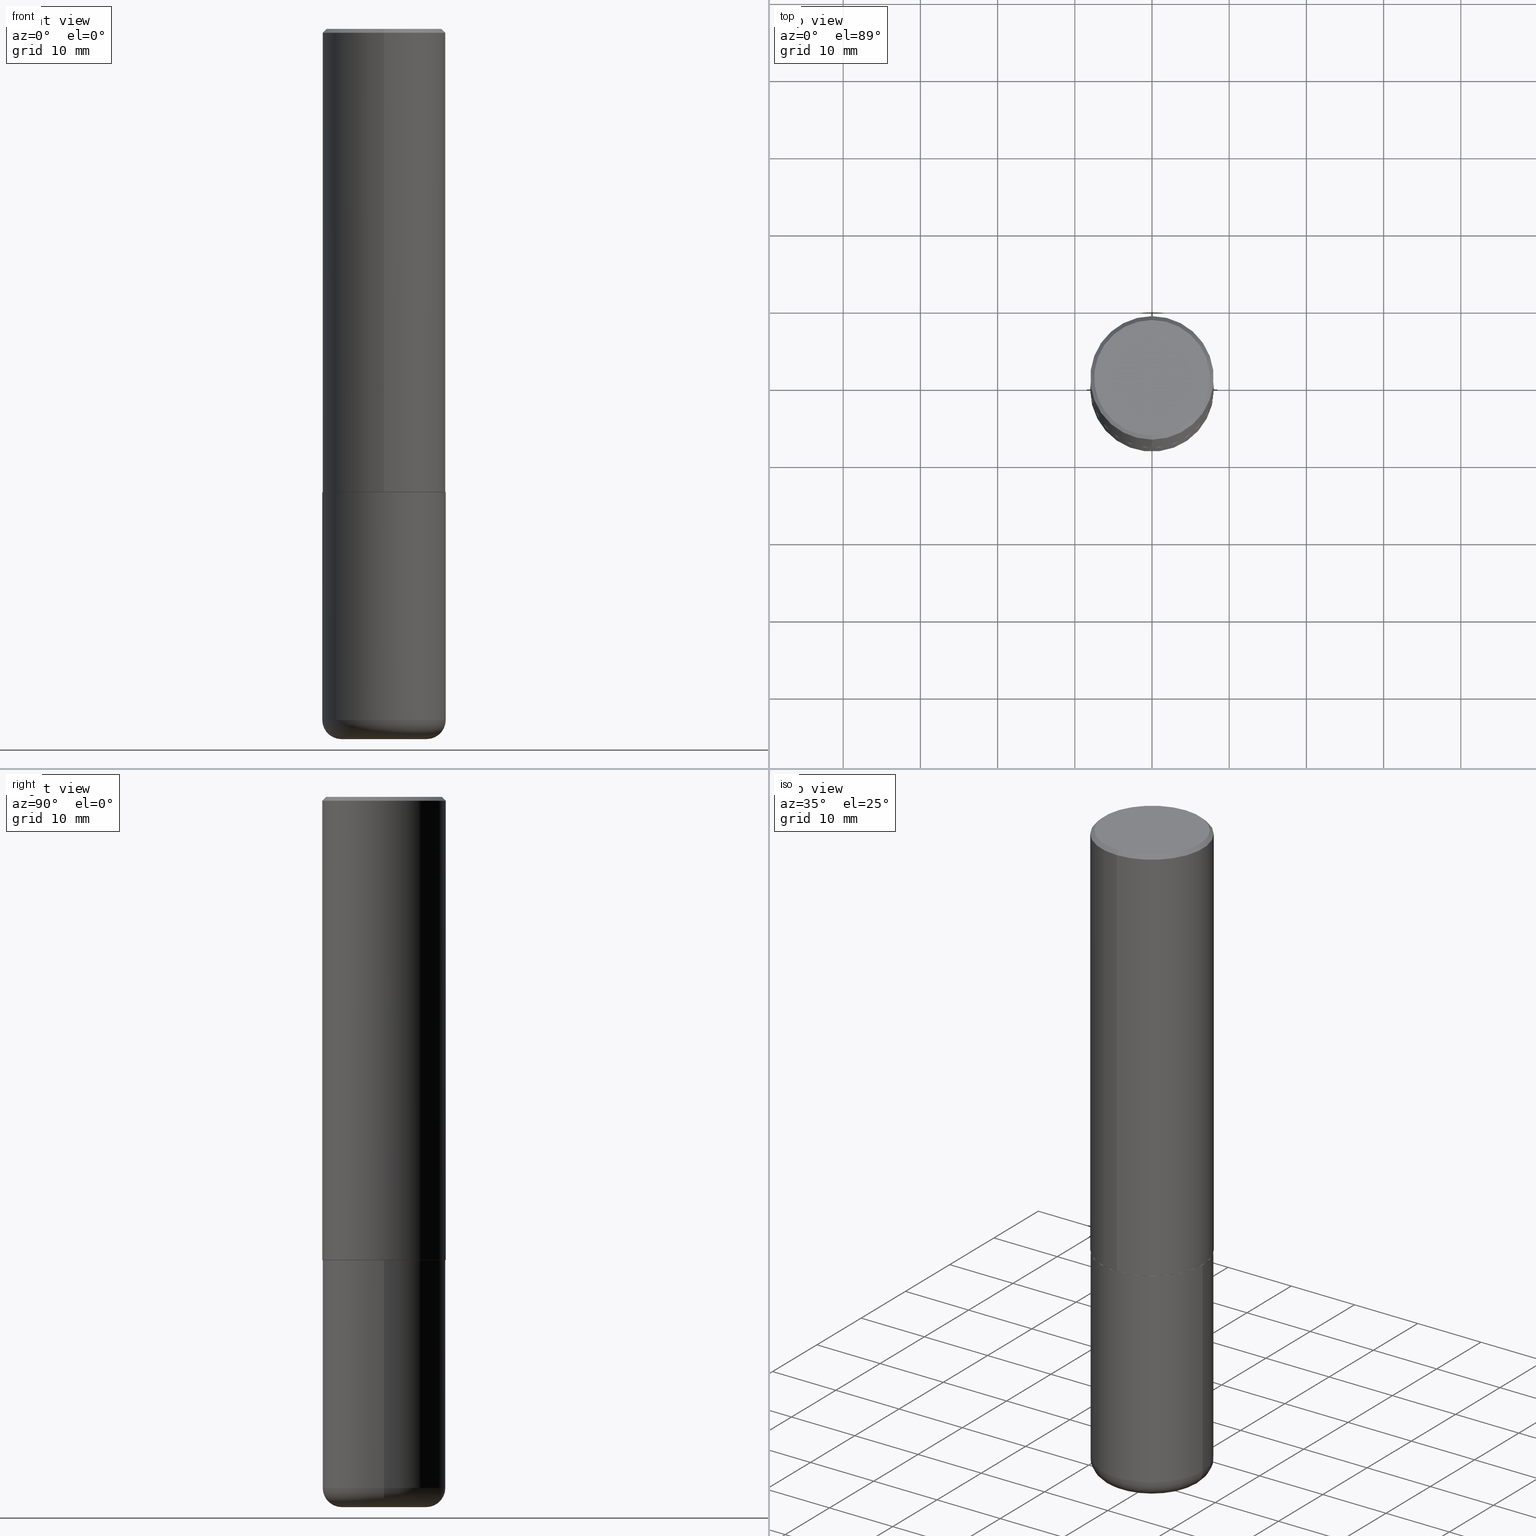
[diagram: canonical four-view strip — front | top / right | iso, engineering-drawing reading convention]
A machine part, canonical four-view strip (front | top / right | iso — engineering-drawing reading convention). The complete STEP part file that produces these views, byte-faithful:
ISO-10303-21;
HEADER;
FILE_DESCRIPTION (( 'STEP AP203' ),
    '1' );
FILE_NAME ('44820.STEP',
    '2024-03-04T08:43:23',
    ( '' ),
    ( '' ),
    'SwSTEP 2.0',
    'SolidWorks 2023',
    '' );
FILE_SCHEMA (( 'CONFIG_CONTROL_DESIGN' ));
ENDSEC;

DATA;
#1 = MECHANICAL_CONTEXT ( 'NONE', #132, 'mechanical' ) ;
#2 = VERTEX_POINT ( 'NONE', #37 ) ;
#3 = VERTEX_POINT ( 'NONE', #229 ) ;
#4 = LINE ( 'NONE', #127, #193 ) ;
#5 = VERTEX_POINT ( 'NONE', #66 ) ;
#6 = ADVANCED_FACE ( 'NONE', ( #270 ), #162, .T. ) ;
#7 = CIRCLE ( 'NONE', #375, 0.2949499999999997124 ) ;
#8 = CIRCLE ( 'NONE', #188, 0.3149500000000000077 ) ;
#9 = PERSON_AND_ORGANIZATION ( #225, #202 ) ;
#10 = DIRECTION ( 'NONE',  ( -2.445468806185136597E-29, 3.491481338843145583E-15, 1.000000000000000000 ) ) ;
#11 = COORDINATED_UNIVERSAL_TIME_OFFSET ( 5, 0, .BEHIND. ) ;
#12 = CARTESIAN_POINT ( 'NONE',  ( 8.616853885473946211E-29, -1.230258364554770589E-14, -3.523599999999999621 ) ) ;
#13 = DIRECTION ( 'NONE',  ( 1.000000000000000000, -6.982962677686269866E-15, 0.000000000000000000 ) ) ;
#14 = EDGE_CURVE ( 'NONE', #231, #379, #73, .T. ) ;
#15 = AXIS2_PLACEMENT_3D ( 'NONE', #338, #45, #332 ) ;
#16 = SECURITY_CLASSIFICATION ( '', '', #101 ) ;
#17 = FACE_OUTER_BOUND ( 'NONE', #226, .T. ) ;
#18 = PERSON_AND_ORGANIZATION_ROLE ( 'creator' ) ;
#19 = DIRECTION ( 'NONE',  ( -6.982962677686266711E-15, -1.000000000000000000, 3.480615376543096919E-15 ) ) ;
#20 = EDGE_CURVE ( 'NONE', #384, #379, #92, .T. ) ;
#21 = TOROIDAL_SURFACE ( 'NONE', #293, 0.2165500000000000203, 0.09839999999999984870 ) ;
#22 = CARTESIAN_POINT ( 'NONE',  ( 2.129454468560426178E-15, 0.2949499999999997124, -7.480905965451576175E-16 ) ) ;
#23 = ORIENTED_EDGE ( 'NONE', *, *, #399, .T. ) ;
#24 = FACE_OUTER_BOUND ( 'NONE', #122, .T. ) ;
#25 = EDGE_LOOP ( 'NONE', ( #323, #407 ) ) ;
#26 = ORIENTED_EDGE ( 'NONE', *, *, #43, .F. ) ;
#27 = VECTOR ( 'NONE', #273, 39.37007874015748143 ) ;
#28 = VERTEX_POINT ( 'NONE', #358 ) ;
#29 = EDGE_LOOP ( 'NONE', ( #318, #343, #314, #180 ) ) ;
#30 = CLOSED_SHELL ( 'NONE', ( #390, #409, #275, #249, #307, #211 ) ) ;
#31 = AXIS2_PLACEMENT_3D ( 'NONE', #98, #222, #189 ) ;
#32 = PRODUCT_DEFINITION_FORMATION_WITH_SPECIFIED_SOURCE ( 'ANY', '', #396, .NOT_KNOWN. ) ;
#33 = CARTESIAN_POINT ( 'NONE',  ( 5.770399254251818281E-29, -8.249587257318639409E-15, -2.361199999999999743 ) ) ;
#34 = DIRECTION ( 'NONE',  ( -6.982962677686265922E-15, -1.000000000000000000, 3.493811306673996397E-15 ) ) ;
#35 =( CONVERSION_BASED_UNIT ( 'INCH', #261 ) LENGTH_UNIT ( ) NAMED_UNIT ( #371 ) );
#36 = DIRECTION ( 'NONE',  ( -6.982962677686265922E-15, -1.000000000000000000, 3.496670018878889100E-15 ) ) ;
#37 = CARTESIAN_POINT ( 'NONE',  ( -2.092108864420427242E-15, -0.2949499999999997124, 1.312908693261830693E-15 ) ) ;
#38 = AXIS2_PLACEMENT_3D ( 'NONE', #195, #295, #330 ) ;
#39 = LOCAL_TIME ( 3, 43, 23.00000000000000000, #109 ) ;
#40 = APPROVAL_STATUS ( 'not_yet_approved' ) ;
#41 = CARTESIAN_POINT ( 'NONE',  ( 0.2165500000000000203, -1.415830597714283123E-14, -3.621999999999999442 ) ) ;
#42 = FACE_OUTER_BOUND ( 'NONE', #413, .T. ) ;
#43 = EDGE_CURVE ( 'NONE', #217, #183, #356, .T. ) ;
#44 = APPROVAL_ROLE ( '' ) ;
#45 = DIRECTION ( 'NONE',  ( -2.445468806185136597E-29, 3.491481338843145583E-15, 1.000000000000000000 ) ) ;
#46 = AXIS2_PLACEMENT_3D ( 'NONE', #83, #233, #19 ) ;
#47 = CALENDAR_DATE ( 2024, 4, 3 ) ;
#48 = CARTESIAN_POINT ( 'NONE',  ( -2.192301132659545875E-15, -0.3139500000000082780, -2.362199999999998301 ) ) ;
#49 = ADVANCED_FACE ( 'NONE', ( #71 ), #414, .T. ) ;
#50 = DIRECTION ( 'NONE',  ( -6.982962677686266711E-15, -1.000000000000000000, 3.491481338843145583E-15 ) ) ;
#51 = EDGE_CURVE ( 'NONE', #260, #91, #61, .T. ) ;
#52 = CARTESIAN_POINT ( 'NONE',  ( 2.199284095337289871E-15, 0.3149499999999999522, -0.02000000000000116962 ) ) ;
#53 = DIRECTION ( 'NONE',  ( 1.000000000000000000, -6.982962677686269866E-15, 0.000000000000000000 ) ) ;
#54 = AXIS2_PLACEMENT_3D ( 'NONE', #111, #239, #278 ) ;
#55 = FACE_OUTER_BOUND ( 'NONE', #349, .T. ) ;
#56 = CC_DESIGN_APPROVAL ( #386, ( #32 ) ) ;
#57 = DIRECTION ( 'NONE',  ( 1.000000000000000000, -6.982962677686266711E-15, 4.883557194083112901E-29 ) ) ;
#58 = FACE_OUTER_BOUND ( 'NONE', #126, .T. ) ;
#59 = VERTEX_POINT ( 'NONE', #41 ) ;
#60 = ORIENTED_EDGE ( 'NONE', *, *, #170, .F. ) ;
#61 = CIRCLE ( 'NONE', #272, 0.3149500000000000077 ) ;
#62 = CARTESIAN_POINT ( 'NONE',  ( -0.2165500000000000203, -1.076390335125921037E-14, -3.523599999999999621 ) ) ;
#63 = ORIENTED_EDGE ( 'NONE', *, *, #68, .F. ) ;
#64 = ORIENTED_EDGE ( 'NONE', *, *, #372, .T. ) ;
#65 = ORIENTED_EDGE ( 'NONE', *, *, #119, .T. ) ;
#66 = CARTESIAN_POINT ( 'NONE',  ( -0.2165500000000000203, -1.058609720713632398E-14, -3.621999999999999442 ) ) ;
#67 = AXIS2_PLACEMENT_3D ( 'NONE', #340, #108, #53 ) ;
#68 = EDGE_CURVE ( 'NONE', #183, #416, #354, .T. ) ;
#69 = CC_DESIGN_PERSON_AND_ORGANIZATION_ASSIGNMENT ( #267, #392, ( #32 ) ) ;
#70 =( NAMED_UNIT ( * ) SI_UNIT ( $, .STERADIAN. ) SOLID_ANGLE_UNIT ( ) );
#71 = FACE_OUTER_BOUND ( 'NONE', #29, .T. ) ;
#72 = APPROVAL_DATE_TIME ( #305, #285 ) ;
#73 = LINE ( 'NONE', #102, #322 ) ;
#74 = CIRCLE ( 'NONE', #31, 0.3139500000000000068 ) ;
#75 = APPROVAL_PERSON_ORGANIZATION ( #131, #285, #398 ) ;
#76 = APPROVAL_ROLE ( '' ) ;
#77 = CARTESIAN_POINT ( 'NONE',  ( -2.192301132659545875E-15, -0.3139500000000082780, -2.362199999999998301 ) ) ;
#78 = EDGE_CURVE ( 'NONE', #3, #217, #286, .T. ) ;
#79 = CARTESIAN_POINT ( 'NONE',  ( 1.523889590590419512E-28, -3.507606103769704490E-15, -3.621999999999999886 ) ) ;
#80 = DIRECTION ( 'NONE',  ( -2.443841798344832310E-29, 3.493811306673996002E-15, 1.000000000000000000 ) ) ;
#81 = CALENDAR_DATE ( 2024, 4, 3 ) ;
#82 = CARTESIAN_POINT ( 'NONE',  ( 0.000000000000000000, 0.000000000000000000, 0.000000000000000000 ) ) ;
#83 = CARTESIAN_POINT ( 'NONE',  ( 5.772843096050161680E-29, -8.253081068625312249E-15, -2.362199999999999633 ) ) ;
#84 = CARTESIAN_POINT ( 'NONE',  ( -2.160713844398143363E-15, -0.3149500000000000632, -0.01999999999999896652 ) ) ;
#85 = ORIENTED_EDGE ( 'NONE', *, *, #103, .T. ) ;
#86 = LINE ( 'NONE', #206, #237 ) ;
#87 = ORIENTED_EDGE ( 'NONE', *, *, #415, .F. ) ;
#88 = EDGE_CURVE ( 'NONE', #416, #183, #130, .T. ) ;
#89 = DIRECTION ( 'NONE',  ( -2.445468806185136597E-29, 3.491481338843145583E-15, 1.000000000000000000 ) ) ;
#90 = ORIENTED_EDGE ( 'NONE', *, *, #68, .T. ) ;
#91 = VERTEX_POINT ( 'NONE', #221 ) ;
#92 = CIRCLE ( 'NONE', #353, 0.3149500000000000077 ) ;
#93 = AXIS2_PLACEMENT_3D ( 'NONE', #302, #145, #138 ) ;
#94 = DIRECTION ( 'NONE',  ( 0.000000000000000000, 0.000000000000000000, 1.000000000000000000 ) ) ;
#95 = ORIENTED_EDGE ( 'NONE', *, *, #88, .T. ) ;
#96 = ORIENTED_EDGE ( 'NONE', *, *, #20, .T. ) ;
#97 = DIRECTION ( 'NONE',  ( -6.982962677686265922E-15, -1.000000000000000000, 3.469564049740290009E-15 ) ) ;
#98 = CARTESIAN_POINT ( 'NONE',  ( 5.772843096050161680E-29, -8.253081068625312249E-15, -2.362199999999999633 ) ) ;
#99 = AXIS2_PLACEMENT_3D ( 'NONE', #309, #199, #236 ) ;
#100 = CARTESIAN_POINT ( 'NONE',  ( 0.000000000000000000, 0.000000000000000000, 0.000000000000000000 ) ) ;
#101 = SECURITY_CLASSIFICATION_LEVEL ( 'unclassified' ) ;
#102 = CARTESIAN_POINT ( 'NONE',  ( 2.199284095337289871E-15, 0.3149499999999999522, -0.02000000000000116962 ) ) ;
#103 = EDGE_CURVE ( 'NONE', #231, #2, #7, .T. ) ;
#104 = CIRCLE ( 'NONE', #360, 0.2165500000000000203 ) ;
#105 = MANIFOLD_SOLID_BREP ( 'Body-Move/Copy2[2]', #292 ) ;
#106 = PERSON_AND_ORGANIZATION ( #225, #202 ) ;
#107 = APPROVAL_STATUS ( 'not_yet_approved' ) ;
#108 = DIRECTION ( 'NONE',  ( -2.445468806185136597E-29, 3.491481338843145583E-15, 1.000000000000000000 ) ) ;
#109 = COORDINATED_UNIVERSAL_TIME_OFFSET ( 5, 0, .BEHIND. ) ;
#110 = CIRCLE ( 'NONE', #303, 0.2949499999999997124 ) ;
#111 = CARTESIAN_POINT ( 'NONE',  ( 4.887683596689681296E-31, -6.987622613348016853E-17, -0.02000000000000006981 ) ) ;
#112 = DIRECTION ( 'NONE',  ( -1.000000000000000000, 6.982962677686265922E-15, -4.876176775795935793E-29 ) ) ;
#113 = EDGE_CURVE ( 'NONE', #3, #416, #4, .T. ) ;
#114 = ORIENTED_EDGE ( 'NONE', *, *, #223, .T. ) ;
#115 = CC_DESIGN_DATE_AND_TIME_ASSIGNMENT ( #402, #227, ( #16 ) ) ;
#116 = AXIS2_PLACEMENT_3D ( 'NONE', #79, #204, #112 ) ;
#117 = ORIENTED_EDGE ( 'NONE', *, *, #317, .T. ) ;
#118 = LINE ( 'NONE', #284, #172 ) ;
#119 = EDGE_CURVE ( 'NONE', #217, #3, #74, .T. ) ;
#120 =( NAMED_UNIT ( * ) PLANE_ANGLE_UNIT ( ) SI_UNIT ( $, .RADIAN. ) );
#121 = ORIENTED_EDGE ( 'NONE', *, *, #113, .T. ) ;
#122 = EDGE_LOOP ( 'NONE', ( #282, #214, #96, #291 ) ) ;
#123 = AXIS2_PLACEMENT_3D ( 'NONE', #152, #410, #176 ) ;
#124 = ORIENTED_EDGE ( 'NONE', *, *, #51, .T. ) ;
#125 = APPROVAL_PERSON_ORGANIZATION ( #400, #386, #76 ) ;
#126 = EDGE_LOOP ( 'NONE', ( #173, #117, #288, #148 ) ) ;
#127 = CARTESIAN_POINT ( 'NONE',  ( 2.230748918918891775E-15, 0.3139499999999917357, -2.362200000000000522 ) ) ;
#128 = ADVANCED_FACE ( 'NONE', ( #158 ), #391, .T. ) ;
#129 = CARTESIAN_POINT ( 'NONE',  ( 4.887683596689681296E-31, -6.987622613348016853E-17, -0.02000000000000006981 ) ) ;
#130 = CIRCLE ( 'NONE', #137, 0.3149500000000002853 ) ;
#131 = PERSON_AND_ORGANIZATION ( #225, #202 ) ;
#132 = APPLICATION_CONTEXT ( 'configuration controlled 3d designs of mechanical parts and assemblies' ) ;
#133 = CALENDAR_DATE ( 2024, 4, 3 ) ;
#134 = DIRECTION ( 'NONE',  ( 6.982962677686265922E-15, 1.000000000000000000, -3.496670018878889100E-15 ) ) ;
#135 = CYLINDRICAL_SURFACE ( 'NONE', #207, 0.3149500000000000077 ) ;
#136 = CARTESIAN_POINT ( 'NONE',  ( 5.770399254251818281E-29, -8.249587257318639409E-15, -2.361199999999999743 ) ) ;
#137 = AXIS2_PLACEMENT_3D ( 'NONE', #136, #157, #97 ) ;
#138 = DIRECTION ( 'NONE',  ( -6.982962677686266711E-15, -1.000000000000000000, 3.480615376543096919E-15 ) ) ;
#139 = CALENDAR_DATE ( 2024, 4, 3 ) ;
#140 = FACE_OUTER_BOUND ( 'NONE', #359, .T. ) ;
#141 = PERSON_AND_ORGANIZATION_ROLE ( 'creator' ) ;
#142 = CC_DESIGN_DATE_AND_TIME_ASSIGNMENT ( #274, #163, ( #342 ) ) ;
#143 = DIRECTION ( 'NONE',  ( -2.445468806185136597E-29, 3.491481338843145583E-15, 1.000000000000000000 ) ) ;
#144 = DIRECTION ( 'NONE',  ( -6.982962677686264344E-15, -1.000000000000000000, 3.493811306673996002E-15 ) ) ;
#145 = DIRECTION ( 'NONE',  ( -2.443841798344832310E-29, 3.493811306673996397E-15, 1.000000000000000000 ) ) ;
#146 = DIRECTION ( 'NONE',  ( -2.443841798344832590E-29, 3.493811306673996002E-15, 1.000000000000000000 ) ) ;
#147 = ORIENTED_EDGE ( 'NONE', *, *, #113, .F. ) ;
#148 = ORIENTED_EDGE ( 'NONE', *, *, #223, .F. ) ;
#149 = EDGE_LOOP ( 'NONE', ( #259, #321 ) ) ;
#150 = AXIS2_PLACEMENT_3D ( 'NONE', #287, #313, #412 ) ;
#151 = CARTESIAN_POINT ( 'NONE',  ( 5.776686413970529753E-29, -8.247577218615278049E-15, -2.362199999999999633 ) ) ;
#152 = CARTESIAN_POINT ( 'NONE',  ( 5.776686413970529753E-29, -8.247577218615278049E-15, -2.362199999999999633 ) ) ;
#153 = APPLICATION_CONTEXT ( 'configuration controlled 3d designs of mechanical parts and assemblies' ) ;
#154 = CIRCLE ( 'NONE', #15, 0.2165500000000000203 ) ;
#155 = ORIENTED_EDGE ( 'NONE', *, *, #43, .T. ) ;
#156 = PRODUCT_RELATED_PRODUCT_CATEGORY ( 'detail', '', ( #396 ) ) ;
#157 = DIRECTION ( 'NONE',  ( -2.443841798344832310E-29, 3.493811306673996397E-15, 1.000000000000000000 ) ) ;
#158 = FACE_OUTER_BOUND ( 'NONE', #294, .T. ) ;
#159 = ORIENTED_EDGE ( 'NONE', *, *, #20, .F. ) ;
#160 = ADVANCED_FACE ( 'NONE', ( #24 ), #325, .T. ) ;
#161 = ORIENTED_EDGE ( 'NONE', *, *, #345, .T. ) ;
#162 = CYLINDRICAL_SURFACE ( 'NONE', #279, 0.3149500000000001743 ) ;
#163 = DATE_TIME_ROLE ( 'creation_date' ) ;
#164 = DIRECTION ( 'NONE',  ( 1.000000000000000000, -6.982962677686271444E-15, 0.000000000000000000 ) ) ;
#165 = VECTOR ( 'NONE', #298, 39.37007874015748143 ) ;
#166 = AXIS2_PLACEMENT_3D ( 'NONE', #33, #262, #395 ) ;
#167 = LOCAL_TIME ( 3, 43, 23.00000000000000000, #192 ) ;
#168 = CARTESIAN_POINT ( 'NONE',  ( 5.772843096050162801E-29, -8.253081068625313826E-15, -2.362199999999999633 ) ) ;
#169 = DIRECTION ( 'NONE',  ( -2.443841798344832310E-29, 3.493811306673996397E-15, 1.000000000000000000 ) ) ;
#170 = EDGE_CURVE ( 'NONE', #260, #28, #271, .T. ) ;
#171 = CARTESIAN_POINT ( 'NONE',  ( 0.2165500000000000203, -1.381474421340066671E-14, -3.523599999999999621 ) ) ;
#172 = VECTOR ( 'NONE', #411, 39.37007874015748143 ) ;
#173 = ORIENTED_EDGE ( 'NONE', *, *, #182, .T. ) ;
#174 = PLANE ( 'NONE',  #123 ) ;
#175 = CARTESIAN_POINT ( 'NONE',  ( 5.776686413970529753E-29, -8.247577218615278049E-15, -2.362199999999999633 ) ) ;
#176 = DIRECTION ( 'NONE',  ( -1.000000000000000000, 6.982962677686265922E-15, -4.876176775795935793E-29 ) ) ;
#177 = ORIENTED_EDGE ( 'NONE', *, *, #328, .T. ) ;
#178 = CIRCLE ( 'NONE', #380, 0.09839999999999986258 ) ;
#179 = EDGE_LOOP ( 'NONE', ( #252, #64, #114, #393 ) ) ;
#180 = ORIENTED_EDGE ( 'NONE', *, *, #301, .T. ) ;
#181 = ORIENTED_EDGE ( 'NONE', *, *, #220, .T. ) ;
#182 = EDGE_CURVE ( 'NONE', #59, #5, #154, .T. ) ;
#183 = VERTEX_POINT ( 'NONE', #369 ) ;
#184 = ORIENTED_EDGE ( 'NONE', *, *, #399, .F. ) ;
#185 = CC_DESIGN_PERSON_AND_ORGANIZATION_ASSIGNMENT ( #106, #18, ( #32 ) ) ;
#186 = AXIS2_PLACEMENT_3D ( 'NONE', #100, #408, #144 ) ;
#187 = DIRECTION ( 'NONE',  ( -2.443841798344832310E-29, 3.493811306673996397E-15, 1.000000000000000000 ) ) ;
#188 = AXIS2_PLACEMENT_3D ( 'NONE', #175, #253, #215 ) ;
#189 = DIRECTION ( 'NONE',  ( -6.982962677686266711E-15, -1.000000000000000000, 3.480615376543096919E-15 ) ) ;
#190 = ORIENTED_EDGE ( 'NONE', *, *, #415, .T. ) ;
#191 = APPLICATION_PROTOCOL_DEFINITION ( 'international standard', 'config_control_design', 1994, #132 ) ;
#192 = COORDINATED_UNIVERSAL_TIME_OFFSET ( 5, 0, .BEHIND. ) ;
#193 = VECTOR ( 'NONE', #388, 39.37007874015748143 ) ;
#194 = PERSON_AND_ORGANIZATION_ROLE ( 'classification_officer' ) ;
#195 = CARTESIAN_POINT ( 'NONE',  ( 5.772843096050161680E-29, -8.253081068625312249E-15, -2.362199999999999633 ) ) ;
#196 = ADVANCED_FACE ( 'NONE', ( #401 ), #248, .T. ) ;
#197 = CARTESIAN_POINT ( 'NONE',  ( -0.3149500000000000077, 2.237854346276435590E-15, -1.549218606675782676E-29 ) ) ;
#198 = DATE_AND_TIME ( #81, #264 ) ;
#199 = DIRECTION ( 'NONE',  ( 2.443841798344832590E-29, -3.493811306673996002E-15, -1.000000000000000000 ) ) ;
#200 = UNCERTAINTY_MEASURE_WITH_UNIT (LENGTH_MEASURE( 1.000000000000000082E-05 ), #35, 'distance_accuracy_value', 'NONE');
#201 = VECTOR ( 'NONE', #80, 39.37007874015748143 ) ;
#202 = ORGANIZATION ( 'UNSPECIFIED', 'UNSPECIFIED', '' ) ;
#203 = DIRECTION ( 'NONE',  ( -2.445468806185136877E-29, 3.491481338843145188E-15, 1.000000000000000000 ) ) ;
#204 = DIRECTION ( 'NONE',  ( 2.438088387897960049E-29, -3.491481338843145188E-15, -1.000000000000000000 ) ) ;
#205 = FACE_OUTER_BOUND ( 'NONE', #212, .T. ) ;
#206 = CARTESIAN_POINT ( 'NONE',  ( 0.3149500000000000077, -2.199284095337289871E-15, 1.535751875536930130E-29 ) ) ;
#207 = AXIS2_PLACEMENT_3D ( 'NONE', #315, #344, #243 ) ;
#208 = VERTEX_POINT ( 'NONE', #405 ) ;
#209 = CARTESIAN_POINT ( 'NONE',  ( -6.901630366088901216E-45, 9.866839262614001010E-31, 2.824090483583366362E-16 ) ) ;
#210 = DIRECTION ( 'NONE',  ( -2.445468806185136597E-29, 3.491481338843145583E-15, 1.000000000000000000 ) ) ;
#211 = ADVANCED_FACE ( 'NONE', ( #364 ), #276, .T. ) ;
#212 = EDGE_LOOP ( 'NONE', ( #181, #346, #87, #382 ) ) ;
#213 = CARTESIAN_POINT ( 'NONE',  ( 8.616853885473946211E-29, -1.230258364554770589E-14, -3.523599999999999621 ) ) ;
#214 = ORIENTED_EDGE ( 'NONE', *, *, #383, .T. ) ;
#215 = DIRECTION ( 'NONE',  ( 1.000000000000000000, -6.982962677686266711E-15, 0.000000000000000000 ) ) ;
#216 = CC_DESIGN_SECURITY_CLASSIFICATION ( #16, ( #32 ) ) ;
#217 = VERTEX_POINT ( 'NONE', #48 ) ;
#218 = PERSON_AND_ORGANIZATION_ROLE ( 'design_owner' ) ;
#219 = ORIENTED_EDGE ( 'NONE', *, *, #258, .T. ) ;
#220 = EDGE_CURVE ( 'NONE', #91, #260, #368, .T. ) ;
#221 = CARTESIAN_POINT ( 'NONE',  ( 0.3149499999999999522, -1.450186774088499734E-14, -3.523599999999999621 ) ) ;
#222 = DIRECTION ( 'NONE',  ( -2.443841798344832310E-29, 3.493811306673996397E-15, 1.000000000000000000 ) ) ;
#223 = EDGE_CURVE ( 'NONE', #59, #91, #178, .T. ) ;
#224 = CARTESIAN_POINT ( 'NONE',  ( 4.887683596689681296E-31, -6.987622613348016853E-17, -0.02000000000000006981 ) ) ;
#225 = PERSON ( 'UNSPECIFIED', 'UNSPECIFIED', 'UNSPECIFIED', ('UNSPECIFIED'), ('UNSPECIFIED'), ('UNSPECIFIED') ) ;
#226 = EDGE_LOOP ( 'NONE', ( #85, #244 ) ) ;
#227 = DATE_TIME_ROLE ( 'classification_date' ) ;
#228 = CALENDAR_DATE ( 2024, 4, 3 ) ;
#229 = CARTESIAN_POINT ( 'NONE',  ( 2.234301632597693067E-15, 0.3139499999999917357, -2.362200000000000522 ) ) ;
#230 = ADVANCED_FACE ( 'NONE', ( #17 ), #403, .F. ) ;
#231 = VERTEX_POINT ( 'NONE', #22 ) ;
#232 = COORDINATED_UNIVERSAL_TIME_OFFSET ( 5, 0, .BEHIND. ) ;
#233 = DIRECTION ( 'NONE',  ( -2.443841798344832310E-29, 3.493811306673996397E-15, 1.000000000000000000 ) ) ;
#234 = LINE ( 'NONE', #331, #201 ) ;
#235 = PERSON_AND_ORGANIZATION ( #225, #202 ) ;
#236 = DIRECTION ( 'NONE',  ( 6.982962677686265922E-15, 1.000000000000000000, -3.493811306673996002E-15 ) ) ;
#237 = VECTOR ( 'NONE', #203, 39.37007874015748143 ) ;
#238 =( GEOMETRIC_REPRESENTATION_CONTEXT ( 3 ) GLOBAL_UNCERTAINTY_ASSIGNED_CONTEXT ( ( #200 ) ) GLOBAL_UNIT_ASSIGNED_CONTEXT ( ( #35, #120, #70 ) ) REPRESENTATION_CONTEXT ( 'NONE', 'WORKASPACE' ) );
#239 = DIRECTION ( 'NONE',  ( 2.443841798344832310E-29, -3.493811306673996397E-15, -1.000000000000000000 ) ) ;
#240 = ADVANCED_FACE ( 'NONE', ( #333 ), #367, .F. ) ;
#241 = CARTESIAN_POINT ( 'NONE',  ( -2.160713844398143363E-15, -0.3149500000000000632, -0.01999999999999896652 ) ) ;
#242 = DIRECTION ( 'NONE',  ( -2.445468806185136877E-29, 3.491481338843145188E-15, 1.000000000000000000 ) ) ;
#243 = DIRECTION ( 'NONE',  ( 1.000000000000000000, -6.982962677686266711E-15, 4.876176775795936353E-29 ) ) ;
#244 = ORIENTED_EDGE ( 'NONE', *, *, #334, .T. ) ;
#245 = MANIFOLD_SOLID_BREP ( 'Body-Move/Copy2[1]', #30 ) ;
#246 = DIRECTION ( 'NONE',  ( 1.000000000000000000, -6.982962677686266711E-15, 4.883557194083112901E-29 ) ) ;
#247 = CARTESIAN_POINT ( 'NONE',  ( 8.616853885473946211E-29, -1.230258364554770589E-14, -3.523599999999999621 ) ) ;
#248 = CONICAL_SURFACE ( 'NONE', #46, 0.3139500000000000068, 0.7853981633976873100 ) ;
#249 = ADVANCED_FACE ( 'NONE', ( #140 ), #283, .T. ) ;
#250 = DIRECTION ( 'NONE',  ( 1.000000000000000000, -6.982962677686266711E-15, 0.000000000000000000 ) ) ;
#251 = ORIENTED_EDGE ( 'NONE', *, *, #78, .T. ) ;
#252 = ORIENTED_EDGE ( 'NONE', *, *, #317, .F. ) ;
#253 = DIRECTION ( 'NONE',  ( -2.445468806185136597E-29, 3.491481338843145583E-15, 1.000000000000000000 ) ) ;
#254 = CARTESIAN_POINT ( 'NONE',  ( 0.000000000000000000, 0.000000000000000000, 0.000000000000000000 ) ) ;
#255 = ORIENTED_EDGE ( 'NONE', *, *, #301, .F. ) ;
#256 = VECTOR ( 'NONE', #242, 39.37007874015748143 ) ;
#257 = TOROIDAL_SURFACE ( 'NONE', #376, 0.2165500000000000203, 0.09839999999999984870 ) ;
#258 = EDGE_CURVE ( 'NONE', #91, #208, #86, .T. ) ;
#259 = ORIENTED_EDGE ( 'NONE', *, *, #119, .F. ) ;
#260 = VERTEX_POINT ( 'NONE', #341 ) ;
#261 = LENGTH_MEASURE_WITH_UNIT ( LENGTH_MEASURE( 0.02539999999999999897 ), #365 );
#262 = DIRECTION ( 'NONE',  ( -2.443841798344832310E-29, 3.493811306673996397E-15, 1.000000000000000000 ) ) ;
#263 = DIRECTION ( 'NONE',  ( -6.982962677686265922E-15, -1.000000000000000000, 3.493811306673996397E-15 ) ) ;
#264 = LOCAL_TIME ( 3, 43, 23.00000000000000000, #11 ) ;
#265 = EDGE_LOOP ( 'NONE', ( #184, #95, #161, #255 ) ) ;
#266 = CC_DESIGN_PERSON_AND_ORGANIZATION_ASSIGNMENT ( #290, #218, ( #396 ) ) ;
#267 = PERSON_AND_ORGANIZATION ( #225, #202 ) ;
#268 = DIRECTION ( 'NONE',  ( -2.443841798344832310E-29, 3.493811306673996397E-15, 1.000000000000000000 ) ) ;
#269 = APPROVAL_DATE_TIME ( #327, #312 ) ;
#270 = FACE_OUTER_BOUND ( 'NONE', #265, .T. ) ;
#271 = LINE ( 'NONE', #197, #256 ) ;
#272 = AXIS2_PLACEMENT_3D ( 'NONE', #12, #10, #13 ) ;
#273 = DIRECTION ( 'NONE',  ( -4.851104656540957964E-15, -0.7071067811865491270, -0.7071067811865459074 ) ) ;
#274 = DATE_AND_TIME ( #228, #39 ) ;
#275 = ADVANCED_FACE ( 'NONE', ( #55 ), #174, .F. ) ;
#276 = PLANE ( 'NONE',  #116 ) ;
#277 = DIRECTION ( 'NONE',  ( 1.000000000000000000, -6.982962677686264344E-15, 0.000000000000000000 ) ) ;
#278 = DIRECTION ( 'NONE',  ( 6.982962677686265922E-15, 1.000000000000000000, -3.496670018878889100E-15 ) ) ;
#279 = AXIS2_PLACEMENT_3D ( 'NONE', #324, #268, #362 ) ;
#280 = CONICAL_SURFACE ( 'NONE', #93, 0.3139500000000000068, 0.7853981633976873100 ) ;
#281 = LINE ( 'NONE', #241, #27 ) ;
#282 = ORIENTED_EDGE ( 'NONE', *, *, #334, .F. ) ;
#283 = CYLINDRICAL_SURFACE ( 'NONE', #406, 0.3149500000000000077 ) ;
#284 = CARTESIAN_POINT ( 'NONE',  ( 2.237854346276435985E-15, 0.3149500000000001743, -1.100375871036975704E-15 ) ) ;
#285 = APPROVAL ( #40, 'UNSPECIFIED' ) ;
#286 = CIRCLE ( 'NONE', #38, 0.3139500000000000068 ) ;
#287 = CARTESIAN_POINT ( 'NONE',  ( 4.887683596689681296E-31, -6.987622613348016853E-17, -0.02000000000000006981 ) ) ;
#288 = ORIENTED_EDGE ( 'NONE', *, *, #220, .F. ) ;
#289 = ADVANCED_BREP_SHAPE_REPRESENTATION ( '44820', ( #245, #105, #304 ), #238 ) ;
#290 = PERSON_AND_ORGANIZATION ( #225, #202 ) ;
#291 = ORIENTED_EDGE ( 'NONE', *, *, #14, .F. ) ;
#292 = CLOSED_SHELL ( 'NONE', ( #351, #128, #160, #49, #6, #196, #240, #230 ) ) ;
#293 = AXIS2_PLACEMENT_3D ( 'NONE', #213, #348, #246 ) ;
#294 = EDGE_LOOP ( 'NONE', ( #90, #23, #159, #350 ) ) ;
#295 = DIRECTION ( 'NONE',  ( -2.443841798344832310E-29, 3.493811306673996397E-15, 1.000000000000000000 ) ) ;
#296 = AXIS2_PLACEMENT_3D ( 'NONE', #151, #89, #250 ) ;
#297 = COORDINATED_UNIVERSAL_TIME_OFFSET ( 5, 0, .BEHIND. ) ;
#298 = DIRECTION ( 'NONE',  ( -4.937700262165728178E-15, -0.7071067811867141062, 0.7071067811863809283 ) ) ;
#299 = DESIGN_CONTEXT ( 'detailed design', #153, 'design' ) ;
#300 = DIRECTION ( 'NONE',  ( 4.937700262164541731E-15, 0.7071067811865442421, -0.7071067811865507924 ) ) ;
#301 = EDGE_CURVE ( 'NONE', #379, #384, #397, .T. ) ;
#302 = CARTESIAN_POINT ( 'NONE',  ( 5.772843096050161680E-29, -8.253081068625312249E-15, -2.362199999999999633 ) ) ;
#303 = AXIS2_PLACEMENT_3D ( 'NONE', #209, #169, #34 ) ;
#304 = AXIS2_PLACEMENT_3D ( 'NONE', #254, #94, #378 ) ;
#305 = DATE_AND_TIME ( #139, #326 ) ;
#306 = DIRECTION ( 'NONE',  ( 1.000000000000000000, -6.982962677686266711E-15, 4.876176775795936353E-29 ) ) ;
#307 = ADVANCED_FACE ( 'NONE', ( #377 ), #21, .T. ) ;
#308 = DIRECTION ( 'NONE',  ( -2.445468806185136597E-29, 3.491481338843145583E-15, 1.000000000000000000 ) ) ;
#309 = CARTESIAN_POINT ( 'NONE',  ( 2.059624841783562091E-15, 0.2949499999999997124, -8.892951207243259356E-16 ) ) ;
#310 = CIRCLE ( 'NONE', #404, 0.09839999999999986258 ) ;
#311 = CC_DESIGN_APPROVAL ( #312, ( #16 ) ) ;
#312 = APPROVAL ( #363, 'UNSPECIFIED' ) ;
#313 = DIRECTION ( 'NONE',  ( -2.443841798344832310E-29, 3.493811306673996397E-15, 1.000000000000000000 ) ) ;
#314 = ORIENTED_EDGE ( 'NONE', *, *, #14, .T. ) ;
#315 = CARTESIAN_POINT ( 'NONE',  ( 0.000000000000000000, 0.000000000000000000, 0.000000000000000000 ) ) ;
#316 = AXIS2_PLACEMENT_3D ( 'NONE', #224, #355, #134 ) ;
#317 = EDGE_CURVE ( 'NONE', #5, #260, #310, .T. ) ;
#318 = ORIENTED_EDGE ( 'NONE', *, *, #383, .F. ) ;
#319 = DIRECTION ( 'NONE',  ( 7.105427357601001859E-15, 1.000000000000000000, -3.491481338843145583E-15 ) ) ;
#320 = ORIENTED_EDGE ( 'NONE', *, *, #328, .F. ) ;
#321 = ORIENTED_EDGE ( 'NONE', *, *, #78, .F. ) ;
#322 = VECTOR ( 'NONE', #300, 39.37007874015748143 ) ;
#323 = ORIENTED_EDGE ( 'NONE', *, *, #182, .F. ) ;
#324 = CARTESIAN_POINT ( 'NONE',  ( 0.000000000000000000, 0.000000000000000000, 0.000000000000000000 ) ) ;
#325 = CONICAL_SURFACE ( 'NONE', #54, 0.3149500000000000077, 0.7853981633974471688 ) ;
#326 = LOCAL_TIME ( 3, 43, 23.00000000000000000, #297 ) ;
#327 = DATE_AND_TIME ( #133, #167 ) ;
#328 = EDGE_CURVE ( 'NONE', #28, #208, #389, .T. ) ;
#329 = APPROVAL_DATE_TIME ( #198, #386 ) ;
#330 = DIRECTION ( 'NONE',  ( -6.982962677686266711E-15, -1.000000000000000000, 3.480615376543096919E-15 ) ) ;
#331 = CARTESIAN_POINT ( 'NONE',  ( -2.199284095337290265E-15, -0.3149500000000001743, 1.100375871036975704E-15 ) ) ;
#332 = DIRECTION ( 'NONE',  ( 1.000000000000000000, -6.982962677686264344E-15, 0.000000000000000000 ) ) ;
#333 = FACE_OUTER_BOUND ( 'NONE', #149, .T. ) ;
#334 = EDGE_CURVE ( 'NONE', #2, #231, #110, .T. ) ;
#335 = AXIS2_PLACEMENT_3D ( 'NONE', #168, #146, #370 ) ;
#336 = CC_DESIGN_APPROVAL ( #285, ( #342 ) ) ;
#337 = CARTESIAN_POINT ( 'NONE',  ( 8.857488016002563354E-29, -1.264614540928987041E-14, -3.621999999999999442 ) ) ;
#338 = CARTESIAN_POINT ( 'NONE',  ( 8.857488016002563354E-29, -1.264614540928987041E-14, -3.621999999999999442 ) ) ;
#339 = CC_DESIGN_PERSON_AND_ORGANIZATION_ASSIGNMENT ( #235, #194, ( #16 ) ) ;
#340 = CARTESIAN_POINT ( 'NONE',  ( 8.616853885473946211E-29, -1.230258364554770589E-14, -3.523599999999999621 ) ) ;
#341 = CARTESIAN_POINT ( 'NONE',  ( -0.3149499999999999522, -1.006472929927126990E-14, -3.523599999999999621 ) ) ;
#342 = PRODUCT_DEFINITION ( 'UNKNOWN', '', #32, #299 ) ;
#343 = ORIENTED_EDGE ( 'NONE', *, *, #103, .F. ) ;
#344 = DIRECTION ( 'NONE',  ( -2.445468806185136597E-29, 3.491481338843145583E-15, 1.000000000000000000 ) ) ;
#345 = EDGE_CURVE ( 'NONE', #183, #384, #234, .T. ) ;
#346 = ORIENTED_EDGE ( 'NONE', *, *, #170, .T. ) ;
#347 = CARTESIAN_POINT ( 'NONE',  ( 2.237854346276465567E-15, 0.3149499999999920141, -2.361200000000000632 ) ) ;
#348 = DIRECTION ( 'NONE',  ( -2.445468806185136597E-29, 3.491481338843145583E-15, 1.000000000000000000 ) ) ;
#349 = EDGE_LOOP ( 'NONE', ( #190, #177 ) ) ;
#350 = ORIENTED_EDGE ( 'NONE', *, *, #345, .F. ) ;
#351 = ADVANCED_FACE ( 'NONE', ( #42 ), #280, .T. ) ;
#352 = CARTESIAN_POINT ( 'NONE',  ( -6.901630366088901216E-45, 9.866839262614001010E-31, 2.824090483583366362E-16 ) ) ;
#353 = AXIS2_PLACEMENT_3D ( 'NONE', #129, #385, #36 ) ;
#354 = CIRCLE ( 'NONE', #166, 0.3149500000000002853 ) ;
#355 = DIRECTION ( 'NONE',  ( 2.443841798344832310E-29, -3.493811306673996397E-15, -1.000000000000000000 ) ) ;
#356 = LINE ( 'NONE', #77, #165 ) ;
#357 = PERSON_AND_ORGANIZATION ( #225, #202 ) ;
#358 = CARTESIAN_POINT ( 'NONE',  ( -0.3149500000000000077, -8.037226085805055984E-15, -2.362199999999999633 ) ) ;
#359 = EDGE_LOOP ( 'NONE', ( #60, #124, #219, #320 ) ) ;
#360 = AXIS2_PLACEMENT_3D ( 'NONE', #337, #143, #277 ) ;
#361 = APPROVAL_PERSON_ORGANIZATION ( #357, #312, #44 ) ;
#362 = DIRECTION ( 'NONE',  ( -6.982962677686264344E-15, -1.000000000000000000, 3.493811306673996002E-15 ) ) ;
#363 = APPROVAL_STATUS ( 'not_yet_approved' ) ;
#364 = FACE_OUTER_BOUND ( 'NONE', #25, .T. ) ;
#365 =( LENGTH_UNIT ( ) NAMED_UNIT ( * ) SI_UNIT ( $, .METRE. ) );
#366 = CC_DESIGN_PERSON_AND_ORGANIZATION_ASSIGNMENT ( #9, #141, ( #342 ) ) ;
#367 = PLANE ( 'NONE',  #335 ) ;
#368 = CIRCLE ( 'NONE', #67, 0.3149500000000000077 ) ;
#369 = CARTESIAN_POINT ( 'NONE',  ( -2.199284095337233467E-15, -0.3149500000000085564, -2.361199999999998411 ) ) ;
#370 = DIRECTION ( 'NONE',  ( -6.982962677686265922E-15, -1.000000000000000000, 3.493811306673996002E-15 ) ) ;
#371 = DIMENSIONAL_EXPONENTS ( 1.000000000000000000, 0.000000000000000000, 0.000000000000000000, 0.000000000000000000, 0.000000000000000000, 0.000000000000000000, 0.000000000000000000 ) ;
#372 = EDGE_CURVE ( 'NONE', #5, #59, #104, .T. ) ;
#373 = EDGE_LOOP ( 'NONE', ( #147, #251, #155, #418 ) ) ;
#374 = DIRECTION ( 'NONE',  ( -1.000000000000000000, 7.105427357601009747E-15, 0.000000000000000000 ) ) ;
#375 = AXIS2_PLACEMENT_3D ( 'NONE', #352, #187, #263 ) ;
#376 = AXIS2_PLACEMENT_3D ( 'NONE', #247, #210, #57 ) ;
#377 = FACE_OUTER_BOUND ( 'NONE', #179, .T. ) ;
#378 = DIRECTION ( 'NONE',  ( 1.000000000000000000, 0.000000000000000000, 0.000000000000000000 ) ) ;
#379 = VERTEX_POINT ( 'NONE', #52 ) ;
#380 = AXIS2_PLACEMENT_3D ( 'NONE', #171, #50, #164 ) ;
#381 = LOCAL_TIME ( 3, 43, 23.00000000000000000, #232 ) ;
#382 = ORIENTED_EDGE ( 'NONE', *, *, #258, .F. ) ;
#383 = EDGE_CURVE ( 'NONE', #2, #384, #281, .T. ) ;
#384 = VERTEX_POINT ( 'NONE', #84 ) ;
#385 = DIRECTION ( 'NONE',  ( -2.443841798344832310E-29, 3.493811306673996397E-15, 1.000000000000000000 ) ) ;
#386 = APPROVAL ( #107, 'UNSPECIFIED' ) ;
#387 = APPLICATION_PROTOCOL_DEFINITION ( 'international standard', 'config_control_design', 1994, #153 ) ;
#388 = DIRECTION ( 'NONE',  ( 5.024295867789263036E-15, 0.7071067811867189912, 0.7071067811863760433 ) ) ;
#389 = CIRCLE ( 'NONE', #296, 0.3149500000000000077 ) ;
#390 = ADVANCED_FACE ( 'NONE', ( #205 ), #135, .T. ) ;
#391 = CYLINDRICAL_SURFACE ( 'NONE', #186, 0.3149500000000001743 ) ;
#392 = PERSON_AND_ORGANIZATION_ROLE ( 'design_supplier' ) ;
#393 = ORIENTED_EDGE ( 'NONE', *, *, #51, .F. ) ;
#394 = SHAPE_DEFINITION_REPRESENTATION ( #417, #289 ) ;
#395 = DIRECTION ( 'NONE',  ( -6.982962677686265922E-15, -1.000000000000000000, 3.469564049740290009E-15 ) ) ;
#396 = PRODUCT ( '44820', '44820', '', ( #1 ) ) ;
#397 = CIRCLE ( 'NONE', #150, 0.3149500000000000077 ) ;
#398 = APPROVAL_ROLE ( '' ) ;
#399 = EDGE_CURVE ( 'NONE', #416, #379, #118, .T. ) ;
#400 = PERSON_AND_ORGANIZATION ( #225, #202 ) ;
#401 = FACE_OUTER_BOUND ( 'NONE', #373, .T. ) ;
#402 = DATE_AND_TIME ( #47, #381 ) ;
#403 = PLANE ( 'NONE',  #99 ) ;
#404 = AXIS2_PLACEMENT_3D ( 'NONE', #62, #319, #374 ) ;
#405 = CARTESIAN_POINT ( 'NONE',  ( 0.3149500000000000077, -1.044686131395256792E-14, -2.362199999999999633 ) ) ;
#406 = AXIS2_PLACEMENT_3D ( 'NONE', #82, #308, #306 ) ;
#407 = ORIENTED_EDGE ( 'NONE', *, *, #372, .F. ) ;
#408 = DIRECTION ( 'NONE',  ( -2.443841798344832310E-29, 3.493811306673996397E-15, 1.000000000000000000 ) ) ;
#409 = ADVANCED_FACE ( 'NONE', ( #58 ), #257, .T. ) ;
#410 = DIRECTION ( 'NONE',  ( 2.438088387897960049E-29, -3.491481338843145188E-15, -1.000000000000000000 ) ) ;
#411 = DIRECTION ( 'NONE',  ( -2.443841798344832310E-29, 3.493811306673996002E-15, 1.000000000000000000 ) ) ;
#412 = DIRECTION ( 'NONE',  ( -6.982962677686265922E-15, -1.000000000000000000, 3.496670018878889100E-15 ) ) ;
#413 = EDGE_LOOP ( 'NONE', ( #65, #121, #63, #26 ) ) ;
#414 = CONICAL_SURFACE ( 'NONE', #316, 0.3149500000000000077, 0.7853981633974471688 ) ;
#415 = EDGE_CURVE ( 'NONE', #208, #28, #8, .T. ) ;
#416 = VERTEX_POINT ( 'NONE', #347 ) ;
#417 = PRODUCT_DEFINITION_SHAPE ( 'NONE', 'NONE',  #342 ) ;
#418 = ORIENTED_EDGE ( 'NONE', *, *, #88, .F. ) ;
ENDSEC;
END-ISO-10303-21;
